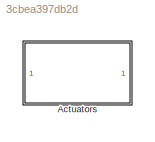
MODEL slx_3cbea397db2d
KIND library
CONFIG AbsTol = auto
CONFIG EnableMultiTasking = off
CONFIG FixedStep = auto
CONFIG MaxStep = auto
CONFIG MinStep = auto
CONFIG RelTol = 1e-3
CONFIG SampleTimeConstraint = Unconstrained
CONFIG SolverName = VariableStepAuto
CONFIG StartTime = 0.0
CONFIG StopTime = 10.0
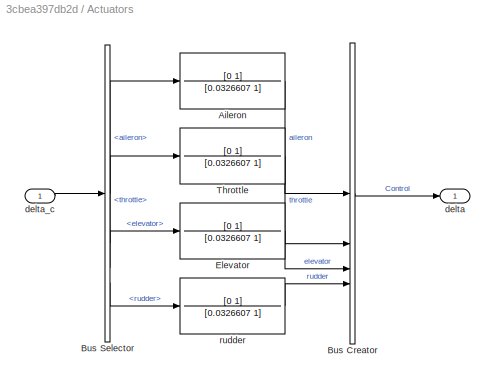
BLOCK [SubSystem] Actuators
BLOCK [TransferFcn] Actuators/Aileron
  Denominator = [0.0326607 1]
  Numerator = [0 1]
BLOCK [BusCreator] Actuators/Bus Creator
  DisplayOption = bar
  InheritFromInputs = on
  Inputs = 4
BLOCK [BusSelector] Actuators/Bus Selector
  OutputSignals = aileron,throttle,elevator,rudder
BLOCK [TransferFcn] Actuators/Elevator
  Denominator = [0.0326607 1]
  Numerator = [0 1]
BLOCK [TransferFcn] Actuators/Throttle
  Denominator = [0.0326607 1]
  Numerator = [0 1]
BLOCK [Outport] Actuators/delta
BLOCK [Inport] Actuators/delta_c
BLOCK [TransferFcn] Actuators/rudder
  Denominator = [0.0326607 1]
  Numerator = [0 1]
LINE Actuators/Aileron:1 -> Actuators/Bus Creator:1
LINE Actuators/Bus Creator:1 -> Actuators/delta:1
LINE Actuators/Bus Selector:1 -> Actuators/Aileron:1
LINE Actuators/Bus Selector:2 -> Actuators/Throttle:1
LINE Actuators/Bus Selector:3 -> Actuators/Elevator:1
LINE Actuators/Bus Selector:4 -> Actuators/rudder:1
LINE Actuators/Elevator:1 -> Actuators/Bus Creator:3
LINE Actuators/Throttle:1 -> Actuators/Bus Creator:2
LINE Actuators/delta_c:1 -> Actuators/Bus Selector:1
LINE Actuators/rudder:1 -> Actuators/Bus Creator:4
